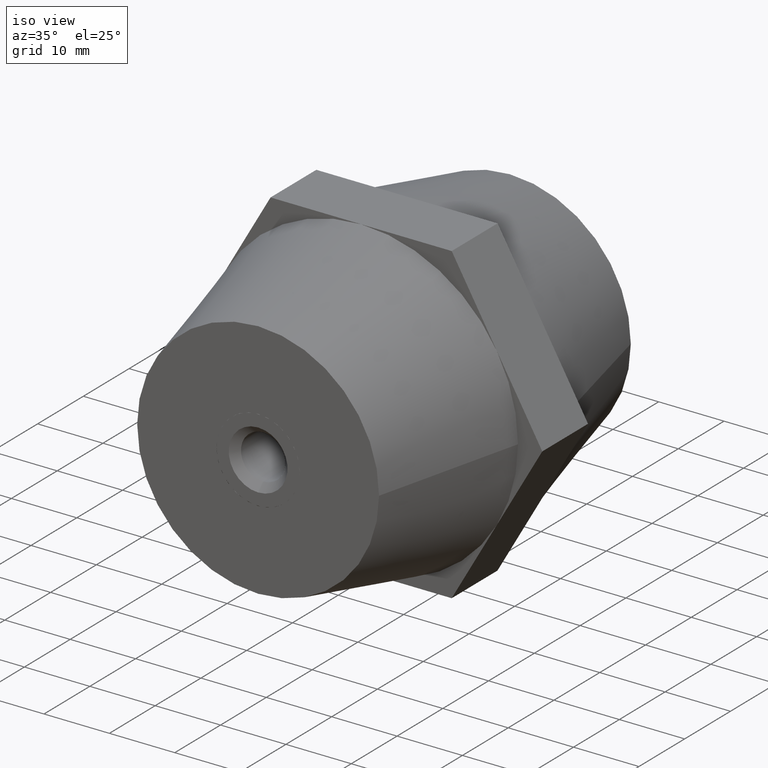
[diagram: clean part render]
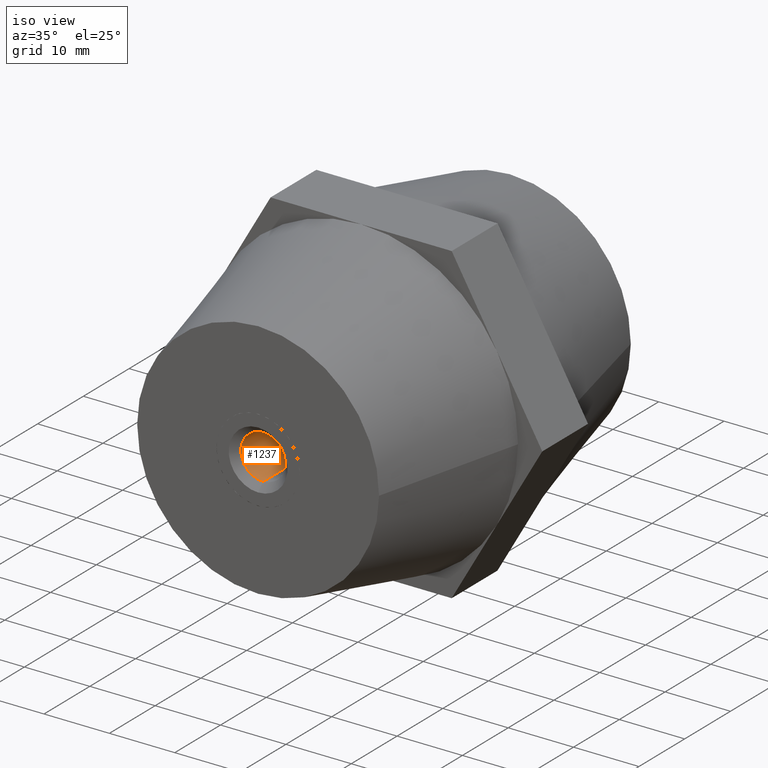
[diagram: same view with one face highlighted and labeled with its STEP entity id]
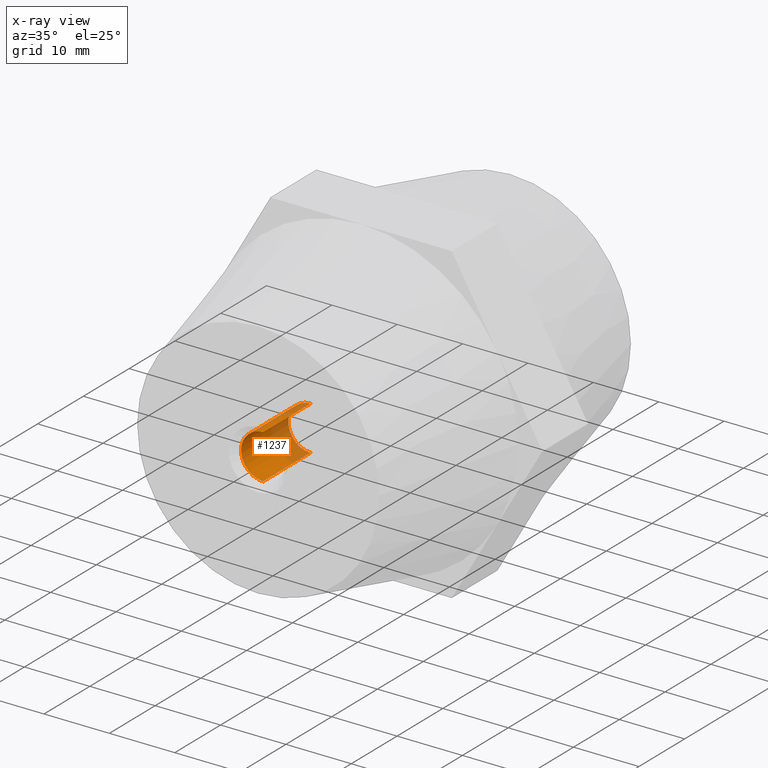
[diagram: x-ray of the same camera — body ghosted, the highlighted face saturated]
A machine part, iso view. The second image highlights one B-rep face of the part: STEP entity #1237.
The next image is the same camera in x-ray: the body ghosted, the highlighted face saturated — about 31% of this face is hidden behind the body in this view.
In plain terms, the highlighted cylindrical surface (edge-blend (fillet) strip) has radius 3.4 mm, axis along (-0, -1, 0).
Its self-contained STEP definition (entity closure, byte-faithful):
#28 = ORIENTED_EDGE ( 'NONE', *, *, #1636, .T. ) ;
#46 = LINE ( 'NONE', #3529, #599 ) ;
#168 = CARTESIAN_POINT ( 'NONE',  ( 0.0000000000000000000, 12.90000000000000000, 0.0000000000000000000 ) ) ;
#203 = CARTESIAN_POINT ( 'NONE',  ( 0.0000000000000000000, 2.540000000000000000, 0.0000000000000000000 ) ) ;
#599 = VECTOR ( 'NONE', #2948, 1000.000000000000000 ) ;
#737 = FACE_OUTER_BOUND ( 'NONE', #1329, .T. ) ;
#866 = ORIENTED_EDGE ( 'NONE', *, *, #1223, .F. ) ;
#896 = EDGE_CURVE ( 'NONE', #3580, #2845, #1993, .T. ) ;
#1086 = DIRECTION ( 'NONE',  ( 0.0000000000000000000, 1.000000000000000000, 0.0000000000000000000 ) ) ;
#1140 = ORIENTED_EDGE ( 'NONE', *, *, #3708, .F. ) ;
#1198 = DIRECTION ( 'NONE',  ( 0.0000000000000000000, 1.000000000000000000, 0.0000000000000000000 ) ) ;
#1209 = CARTESIAN_POINT ( 'NONE',  ( 4.163799117101000600E-016, 14.00000000000000000, -3.399999999999999900 ) ) ;
#1223 = EDGE_CURVE ( 'NONE', #1321, #2845, #3256, .T. ) ;
#1237 = ADVANCED_FACE ( 'NONE', ( #737 ), #1617, .F. ) ;
#1321 = VERTEX_POINT ( 'NONE', #1532 ) ;
#1329 = EDGE_LOOP ( 'NONE', ( #866, #1140, #28, #3640 ) ) ;
#1392 = AXIS2_PLACEMENT_3D ( 'NONE', #1773, #1198, #2639 ) ;
#1532 = CARTESIAN_POINT ( 'NONE',  ( 4.163799117101000600E-016, 2.540000000000000000, -3.399999999999999900 ) ) ;
#1617 = CYLINDRICAL_SURFACE ( 'NONE', #1392, 3.399999999999999900 ) ;
#1636 = EDGE_CURVE ( 'NONE', #2920, #3580, #46, .T. ) ;
#1638 = DIRECTION ( 'NONE',  ( 0.0000000000000000000, 0.0000000000000000000, 1.000000000000000000 ) ) ;
#1773 = CARTESIAN_POINT ( 'NONE',  ( 0.0000000000000000000, 14.00000000000000000, 0.0000000000000000000 ) ) ;
#1993 = CIRCLE ( 'NONE', #2888, 3.399999999999999900 ) ;
#2096 = CARTESIAN_POINT ( 'NONE',  ( 0.0000000000000000000, 12.90000000000000000, 3.399999999999999900 ) ) ;
#2485 = VECTOR ( 'NONE', #2942, 1000.000000000000000 ) ;
#2516 = DIRECTION ( 'NONE',  ( 0.0000000000000000000, 0.0000000000000000000, 1.000000000000000000 ) ) ;
#2639 = DIRECTION ( 'NONE',  ( 0.0000000000000000000, 0.0000000000000000000, 1.000000000000000000 ) ) ;
#2819 = DIRECTION ( 'NONE',  ( 0.0000000000000000000, 1.000000000000000000, 0.0000000000000000000 ) ) ;
#2845 = VERTEX_POINT ( 'NONE', #3300 ) ;
#2888 = AXIS2_PLACEMENT_3D ( 'NONE', #168, #2819, #1638 ) ;
#2915 = CIRCLE ( 'NONE', #3579, 3.399999999999999900 ) ;
#2920 = VERTEX_POINT ( 'NONE', #3634 ) ;
#2942 = DIRECTION ( 'NONE',  ( 0.0000000000000000000, 1.000000000000000000, 0.0000000000000000000 ) ) ;
#2948 = DIRECTION ( 'NONE',  ( 0.0000000000000000000, 1.000000000000000000, 0.0000000000000000000 ) ) ;
#3256 = LINE ( 'NONE', #1209, #2485 ) ;
#3300 = CARTESIAN_POINT ( 'NONE',  ( 4.163799117101000600E-016, 12.90000000000000000, -3.399999999999999900 ) ) ;
#3529 = CARTESIAN_POINT ( 'NONE',  ( 0.0000000000000000000, 14.00000000000000000, 3.399999999999999900 ) ) ;
#3579 = AXIS2_PLACEMENT_3D ( 'NONE', #203, #1086, #2516 ) ;
#3580 = VERTEX_POINT ( 'NONE', #2096 ) ;
#3634 = CARTESIAN_POINT ( 'NONE',  ( 0.0000000000000000000, 2.540000000000000000, 3.399999999999999900 ) ) ;
#3640 = ORIENTED_EDGE ( 'NONE', *, *, #896, .T. ) ;
#3708 = EDGE_CURVE ( 'NONE', #2920, #1321, #2915, .T. ) ;